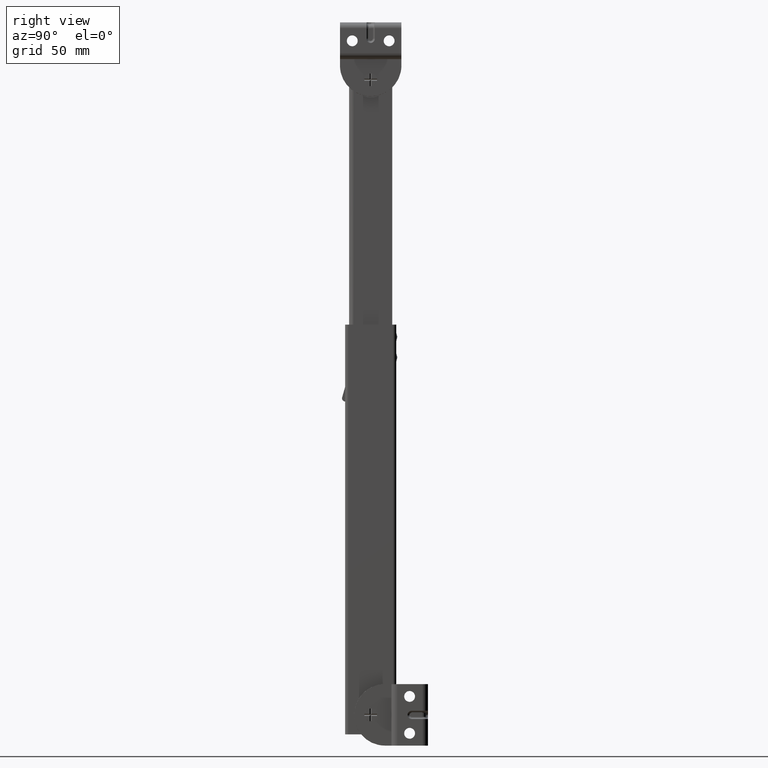
[diagram: clean part render]
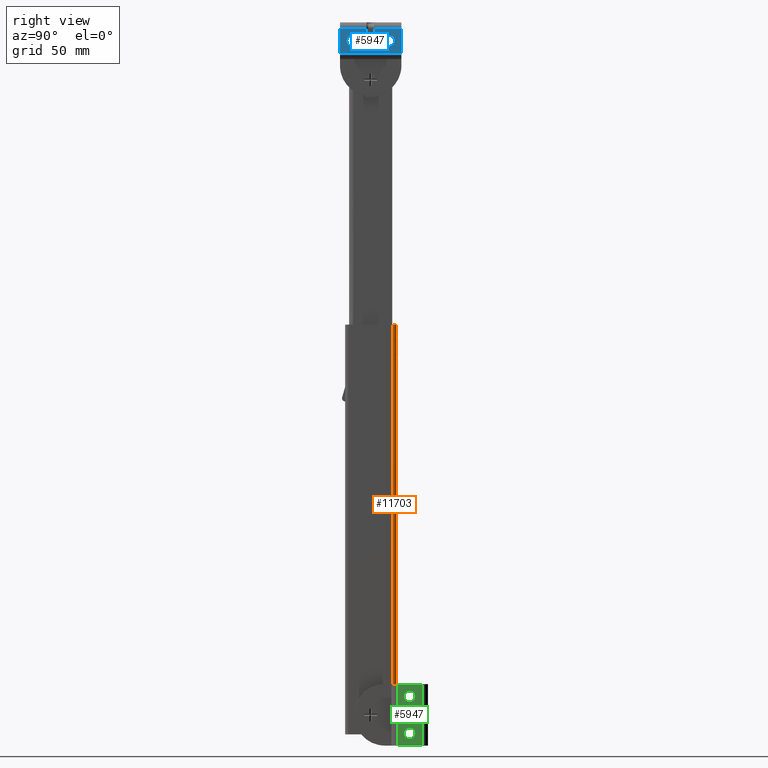
[diagram: same view with three faces highlighted in distinct colors, each labeled with its STEP entity id]
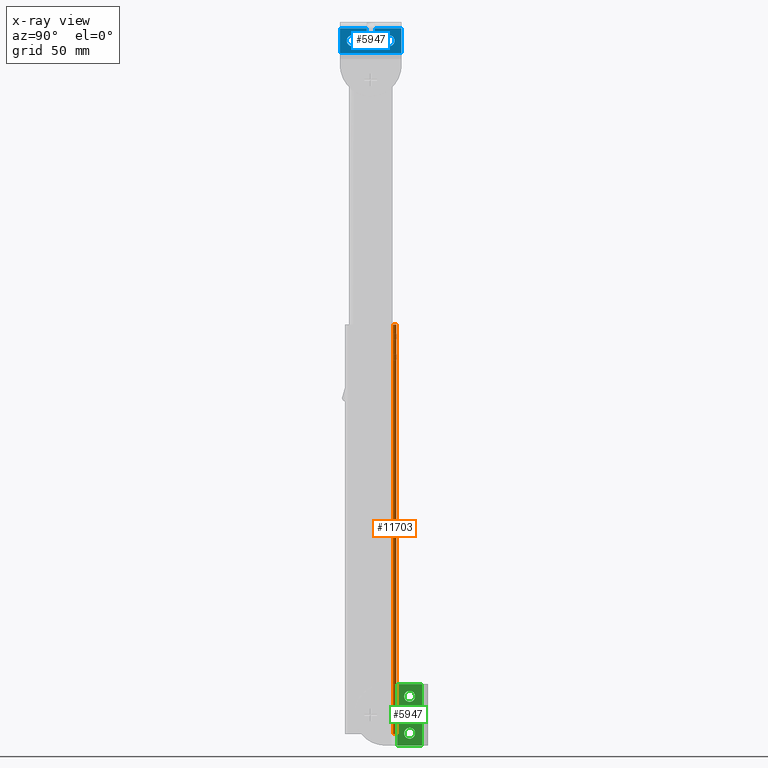
[diagram: x-ray of the same camera — body ghosted, the three highlighted faces saturated]
A machine part, right view with three faces highlighted in distinct colors.
The next image is the same camera in x-ray (body ghosted, the three faces saturated) — at least one of them is partly hidden behind the body in this view.
Their STEP definitions:

[orange] entity #11703 — the highlighted face is a freeform B-spline surface patch.
#11392=CARTESIAN_POINT('',(12.0,10.900002000000001,190.500000000000000));
#11393=VERTEX_POINT('',#11392);
#11399=CARTESIAN_POINT('',(10.402523821338040,12.500000000000000,190.500000000000000));
#11400=VERTEX_POINT('',#11399);
#11401=CARTESIAN_POINT('',(12.0,10.900002000000001,190.500000000000000));
#11402=CARTESIAN_POINT('',(11.999997000000000,12.497474175502179,190.499999999999910));
#11403=CARTESIAN_POINT('',(10.402523821338040,12.500000000000000,190.500000000000000));
#11411=(BOUNDED_CURVE()B_SPLINE_CURVE(2,(#11401,#11402,#11403),.UNSPECIFIED.,.F.,.U.)CURVE()GEOMETRIC_REPRESENTATION_ITEM()QUASI_UNIFORM_CURVE()RATIONAL_B_SPLINE_CURVE((1.0,0.707665577210124,1.0))REPRESENTATION_ITEM(''));
#11412=EDGE_CURVE('',#11393,#11400,#11411,.T.);
#11540=CARTESIAN_POINT('',(10.402523821338040,12.500000000000000,-9.500000000000000));
#11541=VERTEX_POINT('',#11540);
#11547=CARTESIAN_POINT('',(12.0,10.900002000000001,-9.500000000000000));
#11548=VERTEX_POINT('',#11547);
#11549=CARTESIAN_POINT('',(12.0,10.900002000000001,-9.500000000000000));
#11550=CARTESIAN_POINT('',(11.999997000000000,12.497474175502179,-9.500000000000000));
#11551=CARTESIAN_POINT('',(10.402523821338040,12.500000000000000,-9.500000000000000));
#11559=(BOUNDED_CURVE()B_SPLINE_CURVE(2,(#11549,#11550,#11551),.UNSPECIFIED.,.F.,.U.)CURVE()GEOMETRIC_REPRESENTATION_ITEM()QUASI_UNIFORM_CURVE()RATIONAL_B_SPLINE_CURVE((1.0,0.707665577210124,1.0))REPRESENTATION_ITEM(''));
#11560=EDGE_CURVE('',#11548,#11541,#11559,.T.);
#11675=CARTESIAN_POINT('',(10.358110882707400,12.499453719960890,-14.500000000000011));
#11676=CARTESIAN_POINT('',(10.358110882707400,12.499453719960890,195.625000000000000));
#11677=CARTESIAN_POINT('',(12.119831675549250,12.545586002469054,-14.500000000000009));
#11678=CARTESIAN_POINT('',(12.119831675549250,12.545586002469054,195.625000000000090));
#11679=CARTESIAN_POINT('',(11.996041934489503,10.787614319127970,-14.500000000000012));
#11680=CARTESIAN_POINT('',(11.996041934489503,10.787614319127970,195.625000000000030));
#11688=(BOUNDED_SURFACE()B_SPLINE_SURFACE(1,2,((#11675,#11677,#11679),(#11676,#11678,#11680)),.UNSPECIFIED.,.F.,.F.,.U.)B_SPLINE_SURFACE_WITH_KNOTS((2,2),(3,3),(0.0,210.125000000000000),(0.0,2.833678492462042),.UNSPECIFIED.)GEOMETRIC_REPRESENTATION_ITEM()RATIONAL_B_SPLINE_SURFACE(((1.0,0.670961517013939,0.996358441874596),(1.0,0.670961517013939,0.996358441874596)))REPRESENTATION_ITEM('')SURFACE());
#11689=ORIENTED_EDGE('',*,*,#11412,.F.);
#11690=CARTESIAN_POINT('',(12.0,10.900002000000001,-9.500000000000000));
#11691=CARTESIAN_POINT('',(12.0,10.900002000000001,190.500000000000000));
#11692=QUASI_UNIFORM_CURVE('',1,(#11690,#11691),.UNSPECIFIED.,.F.,.U.);
#11693=EDGE_CURVE('',#11548,#11393,#11692,.T.);
#11694=ORIENTED_EDGE('',*,*,#11693,.F.);
#11695=ORIENTED_EDGE('',*,*,#11560,.T.);
#11696=CARTESIAN_POINT('',(10.402523821338040,12.500000000000000,-9.500000000000000));
#11697=CARTESIAN_POINT('',(10.402523821338040,12.500000000000000,190.500000000000000));
#11698=QUASI_UNIFORM_CURVE('',1,(#11696,#11697),.UNSPECIFIED.,.F.,.U.);
#11699=EDGE_CURVE('',#11541,#11400,#11698,.T.);
#11700=ORIENTED_EDGE('',*,*,#11699,.T.);
#11701=EDGE_LOOP('',(#11689,#11694,#11695,#11700));
#11702=FACE_OUTER_BOUND('',#11701,.T.);
#11703=ADVANCED_FACE('',(#11702),#11688,.T.);

[blue] entity #5947 — the highlighted face is a freeform B-spline surface patch.
#3567=CARTESIAN_POINT('',(18.0,11.645057215502231,329.161778634929190));
#3568=VERTEX_POINT('',#3567);
#3574=CARTESIAN_POINT('',(18.0,9.0,331.649999999999980));
#3575=VERTEX_POINT('',#3574);
#3576=CARTESIAN_POINT('',(18.0,9.0,331.649999999999980));
#3577=CARTESIAN_POINT('',(18.000000000000007,11.492871067552215,331.649999999999860));
#3578=CARTESIAN_POINT('',(18.0,11.645057215502231,329.161778634929250));
#3586=(BOUNDED_CURVE()B_SPLINE_CURVE(2,(#3576,#3577,#3578),.UNSPECIFIED.,.F.,.U.)B_SPLINE_CURVE_WITH_KNOTS((3,3),(0.500000000000000,0.739332961568517),.UNSPECIFIED.)CURVE()GEOMETRIC_REPRESENTATION_ITEM()RATIONAL_B_SPLINE_CURVE((1.0,0.719603994072163,0.976072040229867))REPRESENTATION_ITEM(''));
#3587=EDGE_CURVE('',#3575,#3568,#3586,.T.);
#3589=CARTESIAN_POINT('',(18.0,6.368524755301030,328.687209276773610));
#3590=VERTEX_POINT('',#3589);
#3591=CARTESIAN_POINT('',(18.0,6.368524755301030,328.687209276773610));
#3592=CARTESIAN_POINT('',(18.000000000000004,6.350000000000000,328.843056081521750));
#3593=CARTESIAN_POINT('',(18.0,6.350000000000000,329.0));
#3594=CARTESIAN_POINT('',(18.000000000000007,6.350000000000000,331.649999999999980));
#3595=CARTESIAN_POINT('',(18.0,9.0,331.649999999999980));
#3603=(BOUNDED_CURVE()B_SPLINE_CURVE(2,(#3591,#3592,#3593,#3594,#3595),.UNSPECIFIED.,.F.,.U.)B_SPLINE_CURVE_WITH_KNOTS((3,2,3),(0.229562473337618,0.250000000000000,0.500000000000000),.UNSPECIFIED.)CURVE()GEOMETRIC_REPRESENTATION_ITEM()RATIONAL_B_SPLINE_CURVE((0.956026753838947,0.976055948125076,1.0,0.707106781186548,1.0))REPRESENTATION_ITEM(''));
#3604=EDGE_CURVE('',#3590,#3575,#3603,.T.);
#3648=CARTESIAN_POINT('',(18.0,9.0,326.350000000000020));
#3649=VERTEX_POINT('',#3648);
#3650=CARTESIAN_POINT('',(18.0,9.0,326.350000000000020));
#3651=CARTESIAN_POINT('',(18.0,6.646337508725655,326.349999999999970));
#3652=CARTESIAN_POINT('',(18.0,6.368524755301030,328.687209276773610));
#3660=(BOUNDED_CURVE()B_SPLINE_CURVE(2,(#3650,#3651,#3652),.UNSPECIFIED.,.F.,.U.)B_SPLINE_CURVE_WITH_KNOTS((3,3),(0.0,0.229562473337618),.UNSPECIFIED.)CURVE()GEOMETRIC_REPRESENTATION_ITEM()RATIONAL_B_SPLINE_CURVE((1.0,0.731050833061471,0.956026753838947))REPRESENTATION_ITEM(''));
#3661=EDGE_CURVE('',#3649,#3590,#3660,.T.);
#3663=CARTESIAN_POINT('',(18.0,11.645057215502234,329.161778634929250));
#3664=CARTESIAN_POINT('',(18.000000000000004,11.650000000000000,329.080964827917570));
#3665=CARTESIAN_POINT('',(18.0,11.650000000000000,329.0));
#3666=CARTESIAN_POINT('',(18.000000000000007,11.649999999999999,326.349999999999970));
#3667=CARTESIAN_POINT('',(18.0,9.0,326.350000000000020));
#3675=(BOUNDED_CURVE()B_SPLINE_CURVE(2,(#3663,#3664,#3665,#3666,#3667),.UNSPECIFIED.,.F.,.U.)B_SPLINE_CURVE_WITH_KNOTS((3,2,3),(0.739332961568518,0.750000000000000,1.0),.UNSPECIFIED.)CURVE()GEOMETRIC_REPRESENTATION_ITEM()RATIONAL_B_SPLINE_CURVE((0.976072040229869,0.987502787114385,1.0,0.707106781186548,1.0))REPRESENTATION_ITEM(''));
#3676=EDGE_CURVE('',#3568,#3649,#3675,.T.);
#3753=CARTESIAN_POINT('',(18.0,-6.354942784497764,329.161778634929190));
#3754=VERTEX_POINT('',#3753);
#3760=CARTESIAN_POINT('',(18.0,-9.0,331.649999999999980));
#3761=VERTEX_POINT('',#3760);
#3762=CARTESIAN_POINT('',(18.0,-9.0,331.649999999999980));
#3763=CARTESIAN_POINT('',(18.000000000000007,-6.507128932447784,331.649999999999860));
#3764=CARTESIAN_POINT('',(18.0,-6.354942784497764,329.161778634929250));
#3772=(BOUNDED_CURVE()B_SPLINE_CURVE(2,(#3762,#3763,#3764),.UNSPECIFIED.,.F.,.U.)B_SPLINE_CURVE_WITH_KNOTS((3,3),(0.500000000000000,0.739332961568517),.UNSPECIFIED.)CURVE()GEOMETRIC_REPRESENTATION_ITEM()RATIONAL_B_SPLINE_CURVE((1.0,0.719603994072163,0.976072040229867))REPRESENTATION_ITEM(''));
#3773=EDGE_CURVE('',#3761,#3754,#3772,.T.);
#3775=CARTESIAN_POINT('',(18.0,-11.631475244698970,328.687209276773610));
#3776=VERTEX_POINT('',#3775);
#3777=CARTESIAN_POINT('',(18.0,-11.631475244698965,328.687209276773610));
#3778=CARTESIAN_POINT('',(17.999999999999993,-11.649999999999999,328.843056081521750));
#3779=CARTESIAN_POINT('',(18.0,-11.650000000000000,329.0));
#3780=CARTESIAN_POINT('',(18.000000000000007,-11.649999999999999,331.649999999999980));
#3781=CARTESIAN_POINT('',(18.0,-9.0,331.649999999999980));
#3789=(BOUNDED_CURVE()B_SPLINE_CURVE(2,(#3777,#3778,#3779,#3780,#3781),.UNSPECIFIED.,.F.,.U.)B_SPLINE_CURVE_WITH_KNOTS((3,2,3),(0.229562473337618,0.250000000000000,0.500000000000000),.UNSPECIFIED.)CURVE()GEOMETRIC_REPRESENTATION_ITEM()RATIONAL_B_SPLINE_CURVE((0.956026753838947,0.976055948125076,1.0,0.707106781186548,1.0))REPRESENTATION_ITEM(''));
#3790=EDGE_CURVE('',#3776,#3761,#3789,.T.);
#3834=CARTESIAN_POINT('',(18.0,-9.0,326.350000000000020));
#3835=VERTEX_POINT('',#3834);
#3836=CARTESIAN_POINT('',(18.0,-9.0,326.350000000000020));
#3837=CARTESIAN_POINT('',(18.0,-11.353662491274346,326.349999999999970));
#3838=CARTESIAN_POINT('',(18.0,-11.631475244698965,328.687209276773610));
#3846=(BOUNDED_CURVE()B_SPLINE_CURVE(2,(#3836,#3837,#3838),.UNSPECIFIED.,.F.,.U.)B_SPLINE_CURVE_WITH_KNOTS((3,3),(0.0,0.229562473337618),.UNSPECIFIED.)CURVE()GEOMETRIC_REPRESENTATION_ITEM()RATIONAL_B_SPLINE_CURVE((1.0,0.731050833061471,0.956026753838947))REPRESENTATION_ITEM(''));
#3847=EDGE_CURVE('',#3835,#3776,#3846,.T.);
#3849=CARTESIAN_POINT('',(18.0,-6.354942784497764,329.161778634929250));
#3850=CARTESIAN_POINT('',(18.000000000000004,-6.350000000000000,329.080964827917570));
#3851=CARTESIAN_POINT('',(18.0,-6.350000000000000,329.0));
#3852=CARTESIAN_POINT('',(18.000000000000007,-6.350000000000000,326.349999999999970));
#3853=CARTESIAN_POINT('',(18.0,-9.0,326.350000000000020));
#3861=(BOUNDED_CURVE()B_SPLINE_CURVE(2,(#3849,#3850,#3851,#3852,#3853),.UNSPECIFIED.,.F.,.U.)B_SPLINE_CURVE_WITH_KNOTS((3,2,3),(0.739332961568518,0.750000000000000,1.0),.UNSPECIFIED.)CURVE()GEOMETRIC_REPRESENTATION_ITEM()RATIONAL_B_SPLINE_CURVE((0.976072040229869,0.987502787114385,1.0,0.707106781186548,1.0))REPRESENTATION_ITEM(''));
#3862=EDGE_CURVE('',#3754,#3835,#3861,.T.);
#4527=CARTESIAN_POINT('',(18.0,-1.999999999999890,329.999993912733490));
#4528=VERTEX_POINT('',#4527);
#4534=CARTESIAN_POINT('',(18.0,2.0,329.999993912733490));
#4535=VERTEX_POINT('',#4534);
#4536=CARTESIAN_POINT('',(18.0,-1.999999999999889,329.999993912733490));
#4537=CARTESIAN_POINT('',(18.000000000000007,-1.999999999999889,327.999993912733540));
#4538=CARTESIAN_POINT('',(18.0,1.110223E-013,327.999993912733490));
#4539=CARTESIAN_POINT('',(18.000000000000007,2.000000000000112,327.999993912733540));
#4540=CARTESIAN_POINT('',(18.0,2.000000000000111,329.999993912733490));
#4548=(BOUNDED_CURVE()B_SPLINE_CURVE(2,(#4536,#4537,#4538,#4539,#4540),.UNSPECIFIED.,.F.,.U.)B_SPLINE_CURVE_WITH_KNOTS((3,2,3),(0.0,0.500000000000000,1.0),.UNSPECIFIED.)CURVE()GEOMETRIC_REPRESENTATION_ITEM()RATIONAL_B_SPLINE_CURVE((1.0,0.707106781186548,1.0,0.707106781186548,1.0))REPRESENTATION_ITEM(''));
#4549=EDGE_CURVE('',#4528,#4535,#4548,.T.);
#4566=CARTESIAN_POINT('',(18.0,2.0,335.094100801407990));
#4567=VERTEX_POINT('',#4566);
#4568=CARTESIAN_POINT('',(18.0,2.0,335.094100801407990));
#4569=CARTESIAN_POINT('',(18.0,2.0,329.999993912733490));
#4570=QUASI_UNIFORM_CURVE('',1,(#4568,#4569),.UNSPECIFIED.,.F.,.U.);
#4571=EDGE_CURVE('',#4567,#4535,#4570,.T.);
#4573=CARTESIAN_POINT('',(18.0,2.0,335.105899198392480));
#4574=VERTEX_POINT('',#4573);
#4575=CARTESIAN_POINT('',(17.999999999999989,2.0,335.105899198392480));
#4576=CARTESIAN_POINT('',(18.000012000212010,2.000000000000000,335.099999999900150));
#4577=CARTESIAN_POINT('',(17.999999999999989,2.0,335.094100801407990));
#4585=(BOUNDED_CURVE()B_SPLINE_CURVE(2,(#4575,#4576,#4577),.UNSPECIFIED.,.F.,.U.)CURVE()GEOMETRIC_REPRESENTATION_ITEM()QUASI_UNIFORM_CURVE()RATIONAL_B_SPLINE_CURVE((1.0,0.999997931000068,1.0))REPRESENTATION_ITEM(''));
#4586=EDGE_CURVE('',#4574,#4567,#4585,.T.);
#4628=CARTESIAN_POINT('',(18.0,-1.999999999999890,335.105899198392480));
#4629=VERTEX_POINT('',#4628);
#4643=CARTESIAN_POINT('',(18.0,-1.999999999999890,335.094100801407990));
#4644=VERTEX_POINT('',#4643);
#4645=CARTESIAN_POINT('',(17.999999999999989,-1.999999999999890,335.105899198392480));
#4646=CARTESIAN_POINT('',(18.000012000212010,-1.999999999999890,335.099999999900150));
#4647=CARTESIAN_POINT('',(17.999999999999989,-1.999999999999890,335.094100801407990));
#4655=(BOUNDED_CURVE()B_SPLINE_CURVE(2,(#4645,#4646,#4647),.UNSPECIFIED.,.F.,.U.)CURVE()GEOMETRIC_REPRESENTATION_ITEM()QUASI_UNIFORM_CURVE()RATIONAL_B_SPLINE_CURVE((1.0,0.999997931000068,1.0))REPRESENTATION_ITEM(''));
#4656=EDGE_CURVE('',#4629,#4644,#4655,.T.);
#4658=CARTESIAN_POINT('',(18.0,-1.999999999999890,335.094100801407990));
#4659=CARTESIAN_POINT('',(18.0,-1.999999999999890,329.999993912733490));
#4660=QUASI_UNIFORM_CURVE('',1,(#4658,#4659),.UNSPECIFIED.,.F.,.U.);
#4661=EDGE_CURVE('',#4644,#4528,#4660,.T.);
#5482=CARTESIAN_POINT('',(18.0,-15.0,323.005899149434010));
#5483=VERTEX_POINT('',#5482);
#5499=CARTESIAN_POINT('',(18.0,-15.0,335.105899198392480));
#5500=VERTEX_POINT('',#5499);
#5501=CARTESIAN_POINT('',(18.0,-15.0,335.105899198392480));
#5502=CARTESIAN_POINT('',(18.0,-15.0,323.005899149434010));
#5503=QUASI_UNIFORM_CURVE('',1,(#5501,#5502),.UNSPECIFIED.,.F.,.U.);
#5504=EDGE_CURVE('',#5500,#5483,#5503,.T.);
#5542=CARTESIAN_POINT('',(18.0,15.0,335.105899198392480));
#5543=VERTEX_POINT('',#5542);
#5557=CARTESIAN_POINT('',(18.0,15.0,323.005899149434010));
#5558=VERTEX_POINT('',#5557);
#5559=CARTESIAN_POINT('',(18.0,15.0,335.105899198392480));
#5560=CARTESIAN_POINT('',(18.0,15.0,323.005899149434010));
#5561=QUASI_UNIFORM_CURVE('',1,(#5559,#5560),.UNSPECIFIED.,.F.,.U.);
#5562=EDGE_CURVE('',#5543,#5558,#5561,.T.);
#5799=CARTESIAN_POINT('',(18.0,15.0,323.005899149434010));
#5800=CARTESIAN_POINT('',(18.0,-15.0,323.005899149434010));
#5801=QUASI_UNIFORM_CURVE('',1,(#5799,#5800),.UNSPECIFIED.,.F.,.U.);
#5802=EDGE_CURVE('',#5558,#5483,#5801,.T.);
#5828=CARTESIAN_POINT('',(18.0,-1.999999999999890,335.105899198392480));
#5829=CARTESIAN_POINT('',(18.0,-15.0,335.105899198392480));
#5830=QUASI_UNIFORM_CURVE('',1,(#5828,#5829),.UNSPECIFIED.,.F.,.U.);
#5831=EDGE_CURVE('',#4629,#5500,#5830,.T.);
#5914=CARTESIAN_POINT('',(18.0,16.498499941854181,322.401494574951070));
#5915=CARTESIAN_POINT('',(18.0,16.498499941854181,335.710291331895920));
#5916=CARTESIAN_POINT('',(18.0,-16.498500746516889,322.401494574951070));
#5917=CARTESIAN_POINT('',(18.0,-16.498500746516889,335.710291331895920));
#5918=B_SPLINE_SURFACE_WITH_KNOTS('',1,1,((#5914,#5916),(#5915,#5917)),.UNSPECIFIED.,.F.,.F.,.U.,(2,2),(2,2),(0.0,13.308796756944790),(0.0,32.997000688371060),.UNSPECIFIED.);
#5919=ORIENTED_EDGE('',*,*,#5504,.T.);
#5920=ORIENTED_EDGE('',*,*,#5802,.F.);
#5921=ORIENTED_EDGE('',*,*,#5562,.F.);
#5922=CARTESIAN_POINT('',(18.0,15.0,335.105899198392480));
#5923=CARTESIAN_POINT('',(18.0,2.0,335.105899198392480));
#5924=QUASI_UNIFORM_CURVE('',1,(#5922,#5923),.UNSPECIFIED.,.F.,.U.);
#5925=EDGE_CURVE('',#5543,#4574,#5924,.T.);
#5926=ORIENTED_EDGE('',*,*,#5925,.T.);
#5927=ORIENTED_EDGE('',*,*,#4586,.T.);
#5928=ORIENTED_EDGE('',*,*,#4571,.T.);
#5929=ORIENTED_EDGE('',*,*,#4549,.F.);
#5930=ORIENTED_EDGE('',*,*,#4661,.F.);
#5931=ORIENTED_EDGE('',*,*,#4656,.F.);
#5932=ORIENTED_EDGE('',*,*,#5831,.T.);
#5933=EDGE_LOOP('',(#5919,#5920,#5921,#5926,#5927,#5928,#5929,#5930,#5931,#5932));
#5934=FACE_OUTER_BOUND('',#5933,.T.);
#5935=ORIENTED_EDGE('',*,*,#3773,.T.);
#5936=ORIENTED_EDGE('',*,*,#3862,.T.);
#5937=ORIENTED_EDGE('',*,*,#3847,.T.);
#5938=ORIENTED_EDGE('',*,*,#3790,.T.);
#5939=EDGE_LOOP('',(#5935,#5936,#5937,#5938));
#5940=FACE_BOUND('',#5939,.T.);
#5941=ORIENTED_EDGE('',*,*,#3587,.T.);
#5942=ORIENTED_EDGE('',*,*,#3676,.T.);
#5943=ORIENTED_EDGE('',*,*,#3661,.T.);
#5944=ORIENTED_EDGE('',*,*,#3604,.T.);
#5945=EDGE_LOOP('',(#5941,#5942,#5943,#5944));
#5946=FACE_BOUND('',#5945,.T.);
#5947=ADVANCED_FACE('',(#5934,#5940,#5946),#5918,.T.);

[green] entity #5947 — the highlighted face is a freeform B-spline surface patch.
#3567=CARTESIAN_POINT('',(18.0,11.645057215502231,329.161778634929190));
#3568=VERTEX_POINT('',#3567);
#3574=CARTESIAN_POINT('',(18.0,9.0,331.649999999999980));
#3575=VERTEX_POINT('',#3574);
#3576=CARTESIAN_POINT('',(18.0,9.0,331.649999999999980));
#3577=CARTESIAN_POINT('',(18.000000000000007,11.492871067552215,331.649999999999860));
#3578=CARTESIAN_POINT('',(18.0,11.645057215502231,329.161778634929250));
#3586=(BOUNDED_CURVE()B_SPLINE_CURVE(2,(#3576,#3577,#3578),.UNSPECIFIED.,.F.,.U.)B_SPLINE_CURVE_WITH_KNOTS((3,3),(0.500000000000000,0.739332961568517),.UNSPECIFIED.)CURVE()GEOMETRIC_REPRESENTATION_ITEM()RATIONAL_B_SPLINE_CURVE((1.0,0.719603994072163,0.976072040229867))REPRESENTATION_ITEM(''));
#3587=EDGE_CURVE('',#3575,#3568,#3586,.T.);
#3589=CARTESIAN_POINT('',(18.0,6.368524755301030,328.687209276773610));
#3590=VERTEX_POINT('',#3589);
#3591=CARTESIAN_POINT('',(18.0,6.368524755301030,328.687209276773610));
#3592=CARTESIAN_POINT('',(18.000000000000004,6.350000000000000,328.843056081521750));
#3593=CARTESIAN_POINT('',(18.0,6.350000000000000,329.0));
#3594=CARTESIAN_POINT('',(18.000000000000007,6.350000000000000,331.649999999999980));
#3595=CARTESIAN_POINT('',(18.0,9.0,331.649999999999980));
#3603=(BOUNDED_CURVE()B_SPLINE_CURVE(2,(#3591,#3592,#3593,#3594,#3595),.UNSPECIFIED.,.F.,.U.)B_SPLINE_CURVE_WITH_KNOTS((3,2,3),(0.229562473337618,0.250000000000000,0.500000000000000),.UNSPECIFIED.)CURVE()GEOMETRIC_REPRESENTATION_ITEM()RATIONAL_B_SPLINE_CURVE((0.956026753838947,0.976055948125076,1.0,0.707106781186548,1.0))REPRESENTATION_ITEM(''));
#3604=EDGE_CURVE('',#3590,#3575,#3603,.T.);
#3648=CARTESIAN_POINT('',(18.0,9.0,326.350000000000020));
#3649=VERTEX_POINT('',#3648);
#3650=CARTESIAN_POINT('',(18.0,9.0,326.350000000000020));
#3651=CARTESIAN_POINT('',(18.0,6.646337508725655,326.349999999999970));
#3652=CARTESIAN_POINT('',(18.0,6.368524755301030,328.687209276773610));
#3660=(BOUNDED_CURVE()B_SPLINE_CURVE(2,(#3650,#3651,#3652),.UNSPECIFIED.,.F.,.U.)B_SPLINE_CURVE_WITH_KNOTS((3,3),(0.0,0.229562473337618),.UNSPECIFIED.)CURVE()GEOMETRIC_REPRESENTATION_ITEM()RATIONAL_B_SPLINE_CURVE((1.0,0.731050833061471,0.956026753838947))REPRESENTATION_ITEM(''));
#3661=EDGE_CURVE('',#3649,#3590,#3660,.T.);
#3663=CARTESIAN_POINT('',(18.0,11.645057215502234,329.161778634929250));
#3664=CARTESIAN_POINT('',(18.000000000000004,11.650000000000000,329.080964827917570));
#3665=CARTESIAN_POINT('',(18.0,11.650000000000000,329.0));
#3666=CARTESIAN_POINT('',(18.000000000000007,11.649999999999999,326.349999999999970));
#3667=CARTESIAN_POINT('',(18.0,9.0,326.350000000000020));
#3675=(BOUNDED_CURVE()B_SPLINE_CURVE(2,(#3663,#3664,#3665,#3666,#3667),.UNSPECIFIED.,.F.,.U.)B_SPLINE_CURVE_WITH_KNOTS((3,2,3),(0.739332961568518,0.750000000000000,1.0),.UNSPECIFIED.)CURVE()GEOMETRIC_REPRESENTATION_ITEM()RATIONAL_B_SPLINE_CURVE((0.976072040229869,0.987502787114385,1.0,0.707106781186548,1.0))REPRESENTATION_ITEM(''));
#3676=EDGE_CURVE('',#3568,#3649,#3675,.T.);
#3753=CARTESIAN_POINT('',(18.0,-6.354942784497764,329.161778634929190));
#3754=VERTEX_POINT('',#3753);
#3760=CARTESIAN_POINT('',(18.0,-9.0,331.649999999999980));
#3761=VERTEX_POINT('',#3760);
#3762=CARTESIAN_POINT('',(18.0,-9.0,331.649999999999980));
#3763=CARTESIAN_POINT('',(18.000000000000007,-6.507128932447784,331.649999999999860));
#3764=CARTESIAN_POINT('',(18.0,-6.354942784497764,329.161778634929250));
#3772=(BOUNDED_CURVE()B_SPLINE_CURVE(2,(#3762,#3763,#3764),.UNSPECIFIED.,.F.,.U.)B_SPLINE_CURVE_WITH_KNOTS((3,3),(0.500000000000000,0.739332961568517),.UNSPECIFIED.)CURVE()GEOMETRIC_REPRESENTATION_ITEM()RATIONAL_B_SPLINE_CURVE((1.0,0.719603994072163,0.976072040229867))REPRESENTATION_ITEM(''));
#3773=EDGE_CURVE('',#3761,#3754,#3772,.T.);
#3775=CARTESIAN_POINT('',(18.0,-11.631475244698970,328.687209276773610));
#3776=VERTEX_POINT('',#3775);
#3777=CARTESIAN_POINT('',(18.0,-11.631475244698965,328.687209276773610));
#3778=CARTESIAN_POINT('',(17.999999999999993,-11.649999999999999,328.843056081521750));
#3779=CARTESIAN_POINT('',(18.0,-11.650000000000000,329.0));
#3780=CARTESIAN_POINT('',(18.000000000000007,-11.649999999999999,331.649999999999980));
#3781=CARTESIAN_POINT('',(18.0,-9.0,331.649999999999980));
#3789=(BOUNDED_CURVE()B_SPLINE_CURVE(2,(#3777,#3778,#3779,#3780,#3781),.UNSPECIFIED.,.F.,.U.)B_SPLINE_CURVE_WITH_KNOTS((3,2,3),(0.229562473337618,0.250000000000000,0.500000000000000),.UNSPECIFIED.)CURVE()GEOMETRIC_REPRESENTATION_ITEM()RATIONAL_B_SPLINE_CURVE((0.956026753838947,0.976055948125076,1.0,0.707106781186548,1.0))REPRESENTATION_ITEM(''));
#3790=EDGE_CURVE('',#3776,#3761,#3789,.T.);
#3834=CARTESIAN_POINT('',(18.0,-9.0,326.350000000000020));
#3835=VERTEX_POINT('',#3834);
#3836=CARTESIAN_POINT('',(18.0,-9.0,326.350000000000020));
#3837=CARTESIAN_POINT('',(18.0,-11.353662491274346,326.349999999999970));
#3838=CARTESIAN_POINT('',(18.0,-11.631475244698965,328.687209276773610));
#3846=(BOUNDED_CURVE()B_SPLINE_CURVE(2,(#3836,#3837,#3838),.UNSPECIFIED.,.F.,.U.)B_SPLINE_CURVE_WITH_KNOTS((3,3),(0.0,0.229562473337618),.UNSPECIFIED.)CURVE()GEOMETRIC_REPRESENTATION_ITEM()RATIONAL_B_SPLINE_CURVE((1.0,0.731050833061471,0.956026753838947))REPRESENTATION_ITEM(''));
#3847=EDGE_CURVE('',#3835,#3776,#3846,.T.);
#3849=CARTESIAN_POINT('',(18.0,-6.354942784497764,329.161778634929250));
#3850=CARTESIAN_POINT('',(18.000000000000004,-6.350000000000000,329.080964827917570));
#3851=CARTESIAN_POINT('',(18.0,-6.350000000000000,329.0));
#3852=CARTESIAN_POINT('',(18.000000000000007,-6.350000000000000,326.349999999999970));
#3853=CARTESIAN_POINT('',(18.0,-9.0,326.350000000000020));
#3861=(BOUNDED_CURVE()B_SPLINE_CURVE(2,(#3849,#3850,#3851,#3852,#3853),.UNSPECIFIED.,.F.,.U.)B_SPLINE_CURVE_WITH_KNOTS((3,2,3),(0.739332961568518,0.750000000000000,1.0),.UNSPECIFIED.)CURVE()GEOMETRIC_REPRESENTATION_ITEM()RATIONAL_B_SPLINE_CURVE((0.976072040229869,0.987502787114385,1.0,0.707106781186548,1.0))REPRESENTATION_ITEM(''));
#3862=EDGE_CURVE('',#3754,#3835,#3861,.T.);
#4527=CARTESIAN_POINT('',(18.0,-1.999999999999890,329.999993912733490));
#4528=VERTEX_POINT('',#4527);
#4534=CARTESIAN_POINT('',(18.0,2.0,329.999993912733490));
#4535=VERTEX_POINT('',#4534);
#4536=CARTESIAN_POINT('',(18.0,-1.999999999999889,329.999993912733490));
#4537=CARTESIAN_POINT('',(18.000000000000007,-1.999999999999889,327.999993912733540));
#4538=CARTESIAN_POINT('',(18.0,1.110223E-013,327.999993912733490));
#4539=CARTESIAN_POINT('',(18.000000000000007,2.000000000000112,327.999993912733540));
#4540=CARTESIAN_POINT('',(18.0,2.000000000000111,329.999993912733490));
#4548=(BOUNDED_CURVE()B_SPLINE_CURVE(2,(#4536,#4537,#4538,#4539,#4540),.UNSPECIFIED.,.F.,.U.)B_SPLINE_CURVE_WITH_KNOTS((3,2,3),(0.0,0.500000000000000,1.0),.UNSPECIFIED.)CURVE()GEOMETRIC_REPRESENTATION_ITEM()RATIONAL_B_SPLINE_CURVE((1.0,0.707106781186548,1.0,0.707106781186548,1.0))REPRESENTATION_ITEM(''));
#4549=EDGE_CURVE('',#4528,#4535,#4548,.T.);
#4566=CARTESIAN_POINT('',(18.0,2.0,335.094100801407990));
#4567=VERTEX_POINT('',#4566);
#4568=CARTESIAN_POINT('',(18.0,2.0,335.094100801407990));
#4569=CARTESIAN_POINT('',(18.0,2.0,329.999993912733490));
#4570=QUASI_UNIFORM_CURVE('',1,(#4568,#4569),.UNSPECIFIED.,.F.,.U.);
#4571=EDGE_CURVE('',#4567,#4535,#4570,.T.);
#4573=CARTESIAN_POINT('',(18.0,2.0,335.105899198392480));
#4574=VERTEX_POINT('',#4573);
#4575=CARTESIAN_POINT('',(17.999999999999989,2.0,335.105899198392480));
#4576=CARTESIAN_POINT('',(18.000012000212010,2.000000000000000,335.099999999900150));
#4577=CARTESIAN_POINT('',(17.999999999999989,2.0,335.094100801407990));
#4585=(BOUNDED_CURVE()B_SPLINE_CURVE(2,(#4575,#4576,#4577),.UNSPECIFIED.,.F.,.U.)CURVE()GEOMETRIC_REPRESENTATION_ITEM()QUASI_UNIFORM_CURVE()RATIONAL_B_SPLINE_CURVE((1.0,0.999997931000068,1.0))REPRESENTATION_ITEM(''));
#4586=EDGE_CURVE('',#4574,#4567,#4585,.T.);
#4628=CARTESIAN_POINT('',(18.0,-1.999999999999890,335.105899198392480));
#4629=VERTEX_POINT('',#4628);
#4643=CARTESIAN_POINT('',(18.0,-1.999999999999890,335.094100801407990));
#4644=VERTEX_POINT('',#4643);
#4645=CARTESIAN_POINT('',(17.999999999999989,-1.999999999999890,335.105899198392480));
#4646=CARTESIAN_POINT('',(18.000012000212010,-1.999999999999890,335.099999999900150));
#4647=CARTESIAN_POINT('',(17.999999999999989,-1.999999999999890,335.094100801407990));
#4655=(BOUNDED_CURVE()B_SPLINE_CURVE(2,(#4645,#4646,#4647),.UNSPECIFIED.,.F.,.U.)CURVE()GEOMETRIC_REPRESENTATION_ITEM()QUASI_UNIFORM_CURVE()RATIONAL_B_SPLINE_CURVE((1.0,0.999997931000068,1.0))REPRESENTATION_ITEM(''));
#4656=EDGE_CURVE('',#4629,#4644,#4655,.T.);
#4658=CARTESIAN_POINT('',(18.0,-1.999999999999890,335.094100801407990));
#4659=CARTESIAN_POINT('',(18.0,-1.999999999999890,329.999993912733490));
#4660=QUASI_UNIFORM_CURVE('',1,(#4658,#4659),.UNSPECIFIED.,.F.,.U.);
#4661=EDGE_CURVE('',#4644,#4528,#4660,.T.);
#5482=CARTESIAN_POINT('',(18.0,-15.0,323.005899149434010));
#5483=VERTEX_POINT('',#5482);
#5499=CARTESIAN_POINT('',(18.0,-15.0,335.105899198392480));
#5500=VERTEX_POINT('',#5499);
#5501=CARTESIAN_POINT('',(18.0,-15.0,335.105899198392480));
#5502=CARTESIAN_POINT('',(18.0,-15.0,323.005899149434010));
#5503=QUASI_UNIFORM_CURVE('',1,(#5501,#5502),.UNSPECIFIED.,.F.,.U.);
#5504=EDGE_CURVE('',#5500,#5483,#5503,.T.);
#5542=CARTESIAN_POINT('',(18.0,15.0,335.105899198392480));
#5543=VERTEX_POINT('',#5542);
#5557=CARTESIAN_POINT('',(18.0,15.0,323.005899149434010));
#5558=VERTEX_POINT('',#5557);
#5559=CARTESIAN_POINT('',(18.0,15.0,335.105899198392480));
#5560=CARTESIAN_POINT('',(18.0,15.0,323.005899149434010));
#5561=QUASI_UNIFORM_CURVE('',1,(#5559,#5560),.UNSPECIFIED.,.F.,.U.);
#5562=EDGE_CURVE('',#5543,#5558,#5561,.T.);
#5799=CARTESIAN_POINT('',(18.0,15.0,323.005899149434010));
#5800=CARTESIAN_POINT('',(18.0,-15.0,323.005899149434010));
#5801=QUASI_UNIFORM_CURVE('',1,(#5799,#5800),.UNSPECIFIED.,.F.,.U.);
#5802=EDGE_CURVE('',#5558,#5483,#5801,.T.);
#5828=CARTESIAN_POINT('',(18.0,-1.999999999999890,335.105899198392480));
#5829=CARTESIAN_POINT('',(18.0,-15.0,335.105899198392480));
#5830=QUASI_UNIFORM_CURVE('',1,(#5828,#5829),.UNSPECIFIED.,.F.,.U.);
#5831=EDGE_CURVE('',#4629,#5500,#5830,.T.);
#5914=CARTESIAN_POINT('',(18.0,16.498499941854181,322.401494574951070));
#5915=CARTESIAN_POINT('',(18.0,16.498499941854181,335.710291331895920));
#5916=CARTESIAN_POINT('',(18.0,-16.498500746516889,322.401494574951070));
#5917=CARTESIAN_POINT('',(18.0,-16.498500746516889,335.710291331895920));
#5918=B_SPLINE_SURFACE_WITH_KNOTS('',1,1,((#5914,#5916),(#5915,#5917)),.UNSPECIFIED.,.F.,.F.,.U.,(2,2),(2,2),(0.0,13.308796756944790),(0.0,32.997000688371060),.UNSPECIFIED.);
#5919=ORIENTED_EDGE('',*,*,#5504,.T.);
#5920=ORIENTED_EDGE('',*,*,#5802,.F.);
#5921=ORIENTED_EDGE('',*,*,#5562,.F.);
#5922=CARTESIAN_POINT('',(18.0,15.0,335.105899198392480));
#5923=CARTESIAN_POINT('',(18.0,2.0,335.105899198392480));
#5924=QUASI_UNIFORM_CURVE('',1,(#5922,#5923),.UNSPECIFIED.,.F.,.U.);
#5925=EDGE_CURVE('',#5543,#4574,#5924,.T.);
#5926=ORIENTED_EDGE('',*,*,#5925,.T.);
#5927=ORIENTED_EDGE('',*,*,#4586,.T.);
#5928=ORIENTED_EDGE('',*,*,#4571,.T.);
#5929=ORIENTED_EDGE('',*,*,#4549,.F.);
#5930=ORIENTED_EDGE('',*,*,#4661,.F.);
#5931=ORIENTED_EDGE('',*,*,#4656,.F.);
#5932=ORIENTED_EDGE('',*,*,#5831,.T.);
#5933=EDGE_LOOP('',(#5919,#5920,#5921,#5926,#5927,#5928,#5929,#5930,#5931,#5932));
#5934=FACE_OUTER_BOUND('',#5933,.T.);
#5935=ORIENTED_EDGE('',*,*,#3773,.T.);
#5936=ORIENTED_EDGE('',*,*,#3862,.T.);
#5937=ORIENTED_EDGE('',*,*,#3847,.T.);
#5938=ORIENTED_EDGE('',*,*,#3790,.T.);
#5939=EDGE_LOOP('',(#5935,#5936,#5937,#5938));
#5940=FACE_BOUND('',#5939,.T.);
#5941=ORIENTED_EDGE('',*,*,#3587,.T.);
#5942=ORIENTED_EDGE('',*,*,#3676,.T.);
#5943=ORIENTED_EDGE('',*,*,#3661,.T.);
#5944=ORIENTED_EDGE('',*,*,#3604,.T.);
#5945=EDGE_LOOP('',(#5941,#5942,#5943,#5944));
#5946=FACE_BOUND('',#5945,.T.);
#5947=ADVANCED_FACE('',(#5934,#5940,#5946),#5918,.T.);